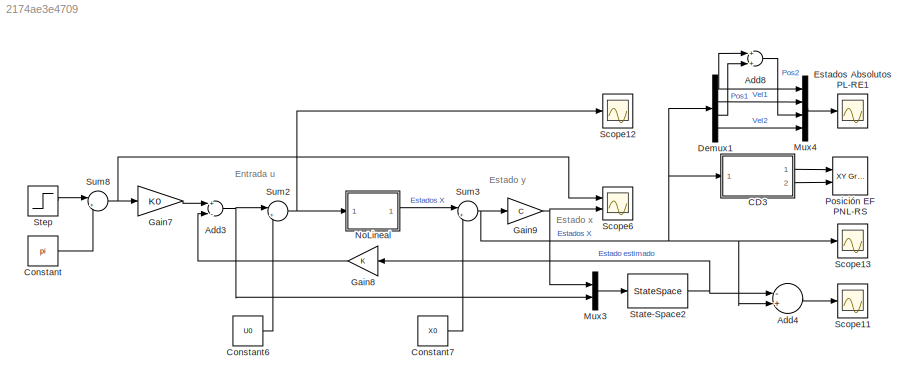
MODEL slx_2174ae3e4709
KIND model
CONFIG AbsTol = auto
CONFIG EnableMultiTasking = off
CONFIG FixedStep = auto
CONFIG MaxStep = auto
CONFIG MinStep = auto
CONFIG RelTol = 1e-3
CONFIG SampleTimeConstraint = Unconstrained
CONFIG Solver = ode45
CONFIG SolverName = ode45
CONFIG StartTime = 0.0
CONFIG StopTime = ts
BLOCK [Sum] Add3
  InputSameDT = off
  Inputs = +-
  OutDataTypeStr = Inherit: Inherit via internal rule
  Ports = [2, 1]
  SaturateOnIntegerOverflow = off
BLOCK [Sum] Add4
  InputSameDT = off
  Inputs = -+
  OutDataTypeStr = Inherit: Inherit via internal rule
  Ports = [2, 1]
  SaturateOnIntegerOverflow = off
BLOCK [Sum] Add8
  InputSameDT = off
  OutDataTypeStr = Inherit: Inherit via internal rule
  Ports = [2, 1]
  SaturateOnIntegerOverflow = off
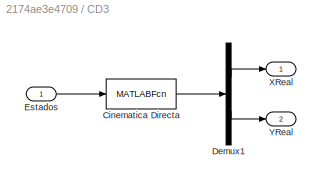
BLOCK [SubSystem] CD3
  Ports = [1, 2]
  RequestExecContextInheritance = off
  TreatAsAtomicUnit = on
BLOCK [MATLABFcn] CD3/Cinematica Directa
  MATLABFcn = CinematicaDirecta
  OutputDimensions = 2
  Ports = [1, 1]
BLOCK [Demux] CD3/Demux1
  DisplayOption = bar
  Outputs = 2
  Ports = [1, 2]
BLOCK [Inport] CD3/Estados
  IconDisplay = Port number
BLOCK [Outport] CD3/XReal
  IconDisplay = Port number
  VectorParamsAs1DForOutWhenUnconnected = off
BLOCK [Outport] CD3/YReal
  IconDisplay = Port number
  Port = 2
  VectorParamsAs1DForOutWhenUnconnected = off
BLOCK [Constant] Constant
  Value = pi
BLOCK [Constant] Constant6
  Value = U0
BLOCK [Constant] Constant7
  Value = X0
BLOCK [Demux] Demux1
  DisplayOption = bar
  Ports = [1, 4]
BLOCK [Scope] Estados Absolutos PL-RE1
  Floating = off
  NumInputPorts = 1
  Ports = [1]
  ScopeSpecificationString = Simulink.scopes.TimeScopeBlockCfg('CurrentConfiguration', extmgr.ConfigurationSet(extmgr.Configuration('Core','General UI',true,'FigureColor',[0 0 0]),extmgr.Configuration('Core','Source UI',true),extmgr.Configuration('Sources','WiredSimulink',true,'DataLoggingVariableName','ScopeData1'),extmgr.Configuration('Visuals','Time Domain',true,'SerializedDisplays',{struct('MinYLimReal','-0.73331','MaxYLi...<+2080ch>
BLOCK [Gain] Gain7
  Gain = K0
  OutDataTypeStr = Inherit: Inherit via internal rule
  ParamDataTypeStr = Inherit: Inherit via internal rule
  SaturateOnIntegerOverflow = off
BLOCK [Gain] Gain8
  Gain = K
  Multiplication = Matrix(K*u)
  OutDataTypeStr = Inherit: Inherit via internal rule
  ParamDataTypeStr = Inherit: Inherit via internal rule
  SaturateOnIntegerOverflow = off
BLOCK [Gain] Gain9
  Gain = C
  Multiplication = Matrix(K*u)
  OutDataTypeStr = Inherit: Inherit via internal rule
  ParamDataTypeStr = Inherit: Inherit via internal rule
  SaturateOnIntegerOverflow = off
BLOCK [Mux] Mux3
  DisplayOption = bar
  Inputs = 2
  Ports = [2, 1]
BLOCK [Mux] Mux4
  DisplayOption = bar
  Ports = [4, 1]
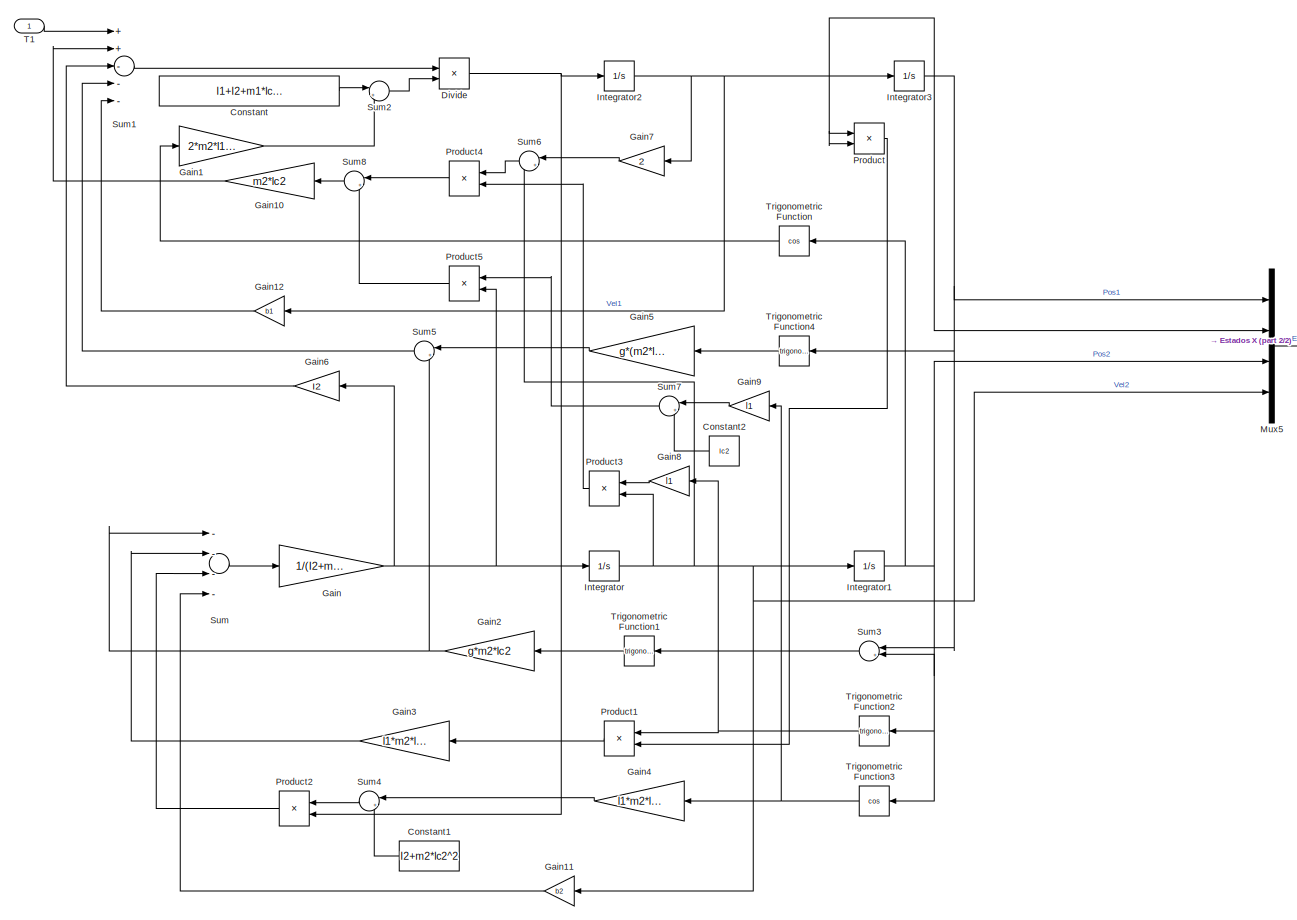
[diagram: NoLineal - part 1/2, most of the canvas]
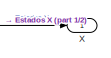
[diagram: NoLineal - part 2/2, middle right region]
BLOCK [SubSystem] NoLineal
  Ports = [1, 1]
  RequestExecContextInheritance = off
BLOCK [Constant] NoLineal/Constant
  Value = I1+I2+m1*lc1^2+m2*(l1^2+lc2^2)
BLOCK [Constant] NoLineal/Constant1
  Value = I2+m2*lc2^2
BLOCK [Constant] NoLineal/Constant2
  Value = lc2
BLOCK [Product] NoLineal/Divide
  InputSameDT = off
  Inputs = */
  OutDataTypeStr = Inherit: Inherit via internal rule
  Ports = [2, 1]
  RndMeth = Floor
  SaturateOnIntegerOverflow = off
BLOCK [Gain] NoLineal/Gain
  Gain = 1/(I2+m2*lc2^2)
  OutDataTypeStr = Inherit: Inherit via internal rule
  ParamDataTypeStr = Inherit: Inherit via internal rule
  SaturateOnIntegerOverflow = off
BLOCK [Gain] NoLineal/Gain1
  Gain = 2*m2*l1*lc2
  OutDataTypeStr = Inherit: Inherit via internal rule
  ParamDataTypeStr = Inherit: Inherit via internal rule
  SaturateOnIntegerOverflow = off
BLOCK [Gain] NoLineal/Gain10
  Gain = m2*lc2
  OutDataTypeStr = Inherit: Inherit via internal rule
  ParamDataTypeStr = Inherit: Inherit via internal rule
  SaturateOnIntegerOverflow = off
BLOCK [Gain] NoLineal/Gain11
  Gain = b2
  OutDataTypeStr = Inherit: Inherit via internal rule
  ParamDataTypeStr = Inherit: Inherit via internal rule
  SaturateOnIntegerOverflow = off
BLOCK [Gain] NoLineal/Gain12
  Gain = b1
  OutDataTypeStr = Inherit: Inherit via internal rule
  ParamDataTypeStr = Inherit: Inherit via internal rule
  SaturateOnIntegerOverflow = off
BLOCK [Gain] NoLineal/Gain2
  Gain = g*m2*lc2
  OutDataTypeStr = Inherit: Inherit via internal rule
  ParamDataTypeStr = Inherit: Inherit via internal rule
  SaturateOnIntegerOverflow = off
BLOCK [Gain] NoLineal/Gain3
  Gain = l1*m2*lc2
  OutDataTypeStr = Inherit: Inherit via internal rule
  ParamDataTypeStr = Inherit: Inherit via internal rule
  SaturateOnIntegerOverflow = off
BLOCK [Gain] NoLineal/Gain4
  Gain = l1*m2*lc2
  OutDataTypeStr = Inherit: Inherit via internal rule
  ParamDataTypeStr = Inherit: Inherit via internal rule
  SaturateOnIntegerOverflow = off
BLOCK [Gain] NoLineal/Gain5
  Gain = g*(m2*l1+m1*lc1)
  OutDataTypeStr = Inherit: Inherit via internal rule
  ParamDataTypeStr = Inherit: Inherit via internal rule
  SaturateOnIntegerOverflow = off
BLOCK [Gain] NoLineal/Gain6
  Gain = I2
  OutDataTypeStr = Inherit: Inherit via internal rule
  ParamDataTypeStr = Inherit: Inherit via internal rule
  SaturateOnIntegerOverflow = off
BLOCK [Gain] NoLineal/Gain7
  Gain = 2
  OutDataTypeStr = Inherit: Inherit via internal rule
  ParamDataTypeStr = Inherit: Inherit via internal rule
  SaturateOnIntegerOverflow = off
BLOCK [Gain] NoLineal/Gain8
  Gain = l1
  OutDataTypeStr = Inherit: Inherit via internal rule
  ParamDataTypeStr = Inherit: Inherit via internal rule
  SaturateOnIntegerOverflow = off
BLOCK [Gain] NoLineal/Gain9
  Gain = l1
  OutDataTypeStr = Inherit: Inherit via internal rule
  ParamDataTypeStr = Inherit: Inherit via internal rule
  SaturateOnIntegerOverflow = off
BLOCK [Integrator] NoLineal/Integrator
  InitialCondition = X0(4)
  Ports = [1, 1]
BLOCK [Integrator] NoLineal/Integrator1
  InitialCondition = X0(3)
  Ports = [1, 1]
BLOCK [Integrator] NoLineal/Integrator2
  InitialCondition = X0(2)
  Ports = [1, 1]
BLOCK [Integrator] NoLineal/Integrator3
  InitialCondition = X0(1)
  Ports = [1, 1]
BLOCK [Mux] NoLineal/Mux5
  DisplayOption = bar
  Ports = [4, 1]
BLOCK [Product] NoLineal/Product
  InputSameDT = off
  OutDataTypeStr = Inherit: Inherit via internal rule
  Ports = [2, 1]
  RndMeth = Floor
  SaturateOnIntegerOverflow = off
BLOCK [Product] NoLineal/Product1
  InputSameDT = off
  OutDataTypeStr = Inherit: Inherit via internal rule
  Ports = [2, 1]
  RndMeth = Floor
  SaturateOnIntegerOverflow = off
BLOCK [Product] NoLineal/Product2
  InputSameDT = off
  OutDataTypeStr = Inherit: Inherit via internal rule
  Ports = [2, 1]
  RndMeth = Floor
  SaturateOnIntegerOverflow = off
BLOCK [Product] NoLineal/Product3
  InputSameDT = off
  OutDataTypeStr = Inherit: Inherit via internal rule
  Ports = [2, 1]
  RndMeth = Floor
  SaturateOnIntegerOverflow = off
BLOCK [Product] NoLineal/Product4
  InputSameDT = off
  OutDataTypeStr = Inherit: Inherit via internal rule
  Ports = [2, 1]
  RndMeth = Floor
  SaturateOnIntegerOverflow = off
BLOCK [Product] NoLineal/Product5
  InputSameDT = off
  OutDataTypeStr = Inherit: Inherit via internal rule
  Ports = [2, 1]
  RndMeth = Floor
  SaturateOnIntegerOverflow = off
BLOCK [Sum] NoLineal/Sum
  InputSameDT = off
  Inputs = ----
  OutDataTypeStr = Inherit: Inherit via internal rule
  Ports = [4, 1]
  SaturateOnIntegerOverflow = off
BLOCK [Sum] NoLineal/Sum1
  InputSameDT = off
  Inputs = ++---
  OutDataTypeStr = Inherit: Inherit via internal rule
  Ports = [5, 1]
  SaturateOnIntegerOverflow = off
BLOCK [Sum] NoLineal/Sum2
  IconShape = round
  InputSameDT = off
  Inputs = |++
  OutDataTypeStr = Inherit: Inherit via internal rule
  Ports = [2, 1]
  SaturateOnIntegerOverflow = off
BLOCK [Sum] NoLineal/Sum3
  IconShape = round
  InputSameDT = off
  Inputs = |++
  OutDataTypeStr = Inherit: Inherit via internal rule
  Ports = [2, 1]
  SaturateOnIntegerOverflow = off
BLOCK [Sum] NoLineal/Sum4
  IconShape = round
  InputSameDT = off
  Inputs = |++
  OutDataTypeStr = Inherit: Inherit via internal rule
  Ports = [2, 1]
  SaturateOnIntegerOverflow = off
BLOCK [Sum] NoLineal/Sum5
  IconShape = round
  InputSameDT = off
  Inputs = |++
  OutDataTypeStr = Inherit: Inherit via internal rule
  Ports = [2, 1]
  SaturateOnIntegerOverflow = off
BLOCK [Sum] NoLineal/Sum6
  IconShape = round
  InputSameDT = off
  Inputs = |++
  OutDataTypeStr = Inherit: Inherit via internal rule
  Ports = [2, 1]
  SaturateOnIntegerOverflow = off
BLOCK [Sum] NoLineal/Sum7
  IconShape = round
  InputSameDT = off
  Inputs = |++
  OutDataTypeStr = Inherit: Inherit via internal rule
  Ports = [2, 1]
  SaturateOnIntegerOverflow = off
BLOCK [Sum] NoLineal/Sum8
  IconShape = round
  InputSameDT = off
  Inputs = |+-
  OutDataTypeStr = Inherit: Inherit via internal rule
  Ports = [2, 1]
  SaturateOnIntegerOverflow = off
BLOCK [Inport] NoLineal/T1
  IconDisplay = Port number
BLOCK [Trigonometry] NoLineal/Trigonometric Function
  Operator = cos
  Ports = [1, 1]
BLOCK [Trigonometry] NoLineal/Trigonometric Function1
  Ports = [1, 1]
BLOCK [Trigonometry] NoLineal/Trigonometric Function2
  Ports = [1, 1]
BLOCK [Trigonometry] NoLineal/Trigonometric Function3
  Operator = cos
  Ports = [1, 1]
BLOCK [Trigonometry] NoLineal/Trigonometric Function4
  Ports = [1, 1]
BLOCK [Outport] NoLineal/X
  IconDisplay = Port number
  VectorParamsAs1DForOutWhenUnconnected = off
BLOCK [Reference] Posición EF PNL-RS  REF=simulink/Sinks/XY Graph
  Ports = [2]
  SourceBlock = simulink/Sinks/XY Graph
  SourceProductBaseCode = SL
  SourceProductName = Simulink
  SourceType = XY scope.
BLOCK [Scope] Scope11
  Floating = off
  NumInputPorts = 1
  Ports = [1]
  ScopeSpecificationString = Simulink.scopes.TimeScopeBlockCfg('CurrentConfiguration', extmgr.ConfigurationSet(extmgr.Configuration('Core','General UI',true,'FigureColor',[0 0 0]),extmgr.Configuration('Core','Source UI',true),extmgr.Configuration('Sources','WiredSimulink',true,'DataLoggingVariableName','ScopeData2'),extmgr.Configuration('Visuals','Time Domain',true,'SerializedDisplays',{struct('MinYLimReal','-0.00004','MaxYLi...<+1955ch>
BLOCK [Scope] Scope12
  Floating = off
  NumInputPorts = 1
  Ports = [1]
  ScopeSpecificationString = Simulink.scopes.TimeScopeBlockCfg('CurrentConfiguration', extmgr.ConfigurationSet(extmgr.Configuration('Core','General UI',true,'FigureColor',[0 0 0]),extmgr.Configuration('Core','Source UI',true),extmgr.Configuration('Sources','WiredSimulink',true,'DataLoggingVariableName','ScopeData3'),extmgr.Configuration('Visuals','Time Domain',true,'SerializedDisplays',{struct('MinYLimReal','-674.49278','MaxY...<+1695ch>
BLOCK [Scope] Scope13
  Floating = off
  NumInputPorts = 1
  Ports = [1]
  ScopeSpecificationString = Simulink.scopes.TimeScopeBlockCfg('CurrentConfiguration', extmgr.ConfigurationSet(extmgr.Configuration('Core','General UI',true,'FigureColor',[0 0 0]),extmgr.Configuration('Core','Source UI',true),extmgr.Configuration('Sources','WiredSimulink',true,'DataLoggingVariableName','ScopeData4'),extmgr.Configuration('Visuals','Time Domain',true,'SerializedDisplays',{struct('MinYLimReal','-90.87837','MaxYL...<+1956ch>
BLOCK [Scope] Scope6
  Floating = off
  NumInputPorts = 2
  Ports = [2]
  ScopeSpecificationString = Simulink.scopes.TimeScopeBlockCfg('CurrentConfiguration', extmgr.ConfigurationSet(extmgr.Configuration('Core','General UI',true,'FigureColor',[0 0 0]),extmgr.Configuration('Core','Source UI',true),extmgr.Configuration('Sources','WiredSimulink',true),extmgr.Configuration('Visuals','Time Domain',true,'SerializedDisplays',{struct('MinYLimReal','-0.44537','MaxYLimReal','4.01833','YLabelReal','','MinYL...<+1811ch>
BLOCK [StateSpace] State-Space2
  A = Al-L*C
  B = [L,Bl]
  C = eye(4)
  D = zeros(4,2)
  InitialCondition = XI
  Ports = [1, 1]
BLOCK [Step] Step
  After = pi+0.2
  SampleTime = 0
  Time = 0
BLOCK [Sum] Sum2
  IconShape = round
  InputSameDT = off
  Inputs = |++
  OutDataTypeStr = Inherit: Inherit via internal rule
  Ports = [2, 1]
  SaturateOnIntegerOverflow = off
BLOCK [Sum] Sum3
  IconShape = round
  InputSameDT = off
  Inputs = |+-
  OutDataTypeStr = Inherit: Inherit via internal rule
  Ports = [2, 1]
  SaturateOnIntegerOverflow = off
BLOCK [Sum] Sum8
  IconShape = round
  InputSameDT = off
  Inputs = |+-
  OutDataTypeStr = Inherit: Inherit via internal rule
  Ports = [2, 1]
  SaturateOnIntegerOverflow = off
ANNOTATION (root): Entrada u
ANNOTATION (root): Estado x
ANNOTATION (root): Estado y
NET Add3:1 -> Mux3:2, Sum2:1
LINE Add4:1 -> Scope11:1
LINE Add8:1 -> Mux4:3
LINE CD3/Cinematica Directa:1 -> CD3/Demux1:1
LINE CD3/Demux1:1 -> CD3/XReal:1
LINE CD3/Demux1:2 -> CD3/YReal:1
LINE CD3/Estados:1 -> CD3/Cinematica Directa:1
LINE CD3:1 -> Posición EF PNL-RS:1
LINE CD3:2 -> Posición EF PNL-RS:2
LINE Constant6:1 -> Sum2:2
LINE Constant7:1 -> Sum3:2
LINE Constant:1 -> Sum8:2
NET Demux1:1 -> Add8:1, Mux4:1
LINE Demux1:2 -> Mux4:2
LINE Demux1:3 -> Add8:2
LINE Demux1:4 -> Mux4:4
LINE Gain7:1 -> Add3:1
LINE Gain8:1 -> Add3:2
NET Gain9:1 -> Mux3:1, Scope6:2
LINE Mux3:1 -> State-Space2:1
LINE Mux4:1 -> Estados Absolutos PL-RE1:1
LINE NoLineal/Constant1:1 -> NoLineal/Sum4:2
LINE NoLineal/Constant2:1 -> NoLineal/Sum7:2
LINE NoLineal/Constant:1 -> NoLineal/Sum2:1
NET NoLineal/Divide:1 -> NoLineal/Integrator2:1, NoLineal/Product2:2
LINE NoLineal/Gain10:1 -> NoLineal/Sum1:2
LINE NoLineal/Gain11:1 -> NoLineal/Sum:4
LINE NoLineal/Gain12:1 -> NoLineal/Sum1:5
LINE NoLineal/Gain1:1 -> NoLineal/Sum2:2
NET NoLineal/Gain2:1 -> NoLineal/Sum5:2, NoLineal/Sum:1
LINE NoLineal/Gain3:1 -> NoLineal/Sum:2
LINE NoLineal/Gain4:1 -> NoLineal/Sum4:1
LINE NoLineal/Gain5:1 -> NoLineal/Sum5:1
LINE NoLineal/Gain6:1 -> NoLineal/Sum1:3
LINE NoLineal/Gain7:1 -> NoLineal/Sum6:1
LINE NoLineal/Gain8:1 -> NoLineal/Product3:1
LINE NoLineal/Gain9:1 -> NoLineal/Sum7:1
NET NoLineal/Gain:1 -> NoLineal/Gain6:1, NoLineal/Integrator:1, NoLineal/Product5:2
NET NoLineal/Integrator1:1 -> NoLineal/Mux5:3, NoLineal/Sum3:2, NoLineal/Trigonometric Function2:1, NoLineal/Trigonometric Function3:1, NoLineal/Trigonometric Function:1
NET NoLineal/Integrator2:1 -> NoLineal/Gain12:1, NoLineal/Gain7:1, NoLineal/Integrator3:1, NoLineal/Mux5:2, NoLineal/Product:1, NoLineal/Product:2
NET NoLineal/Integrator3:1 -> NoLineal/Mux5:1, NoLineal/Sum3:1, NoLineal/Trigonometric Function4:1
NET NoLineal/Integrator:1 -> NoLineal/Gain11:1, NoLineal/Integrator1:1, NoLineal/Mux5:4, NoLineal/Product3:2, NoLineal/Sum6:2
LINE NoLineal/Mux5:1 -> NoLineal/X:1
LINE NoLineal/Product1:1 -> NoLineal/Gain3:1
LINE NoLineal/Product2:1 -> NoLineal/Sum:3
LINE NoLineal/Product3:1 -> NoLineal/Product4:2
LINE NoLineal/Product4:1 -> NoLineal/Sum8:1
LINE NoLineal/Product5:1 -> NoLineal/Sum8:2
LINE NoLineal/Product:1 -> NoLineal/Product1:2
LINE NoLineal/Sum1:1 -> NoLineal/Divide:1
LINE NoLineal/Sum2:1 -> NoLineal/Divide:2
LINE NoLineal/Sum3:1 -> NoLineal/Trigonometric Function1:1
LINE NoLineal/Sum4:1 -> NoLineal/Product2:1
LINE NoLineal/Sum5:1 -> NoLineal/Sum1:4
LINE NoLineal/Sum6:1 -> NoLineal/Product4:1
LINE NoLineal/Sum7:1 -> NoLineal/Product5:1
LINE NoLineal/Sum8:1 -> NoLineal/Gain10:1
LINE NoLineal/Sum:1 -> NoLineal/Gain:1
LINE NoLineal/T1:1 -> NoLineal/Sum1:1
LINE NoLineal/Trigonometric Function1:1 -> NoLineal/Gain2:1
NET NoLineal/Trigonometric Function2:1 -> NoLineal/Gain8:1, NoLineal/Product1:1
NET NoLineal/Trigonometric Function3:1 -> NoLineal/Gain4:1, NoLineal/Gain9:1
LINE NoLineal/Trigonometric Function4:1 -> NoLineal/Gain5:1
LINE NoLineal/Trigonometric Function:1 -> NoLineal/Gain1:1
LINE NoLineal:1 -> Sum3:1
NET State-Space2:1 -> Add4:1, Gain8:1
LINE Step:1 -> Sum8:1
NET Sum2:1 -> NoLineal:1, Scope12:1
NET Sum3:1 -> Add4:2, CD3:1, Demux1:1, Gain9:1, Scope13:1
NET Sum8:1 -> Gain7:1, Scope6:1
note: NET lines group one-source signal fan-out (src -> all destinations, sorted); 1:1 wires keep LINE
